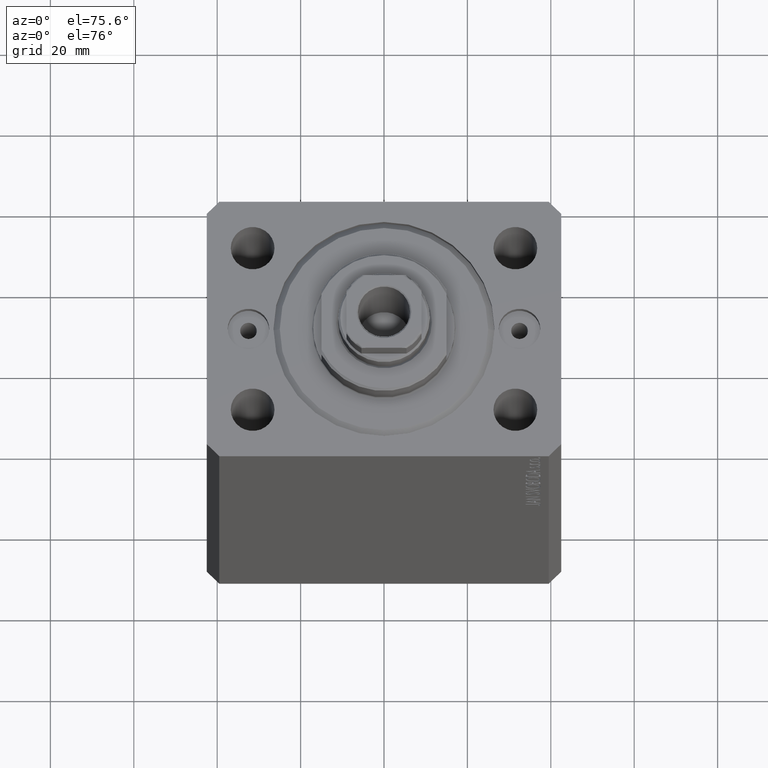
[diagram: clean part render]
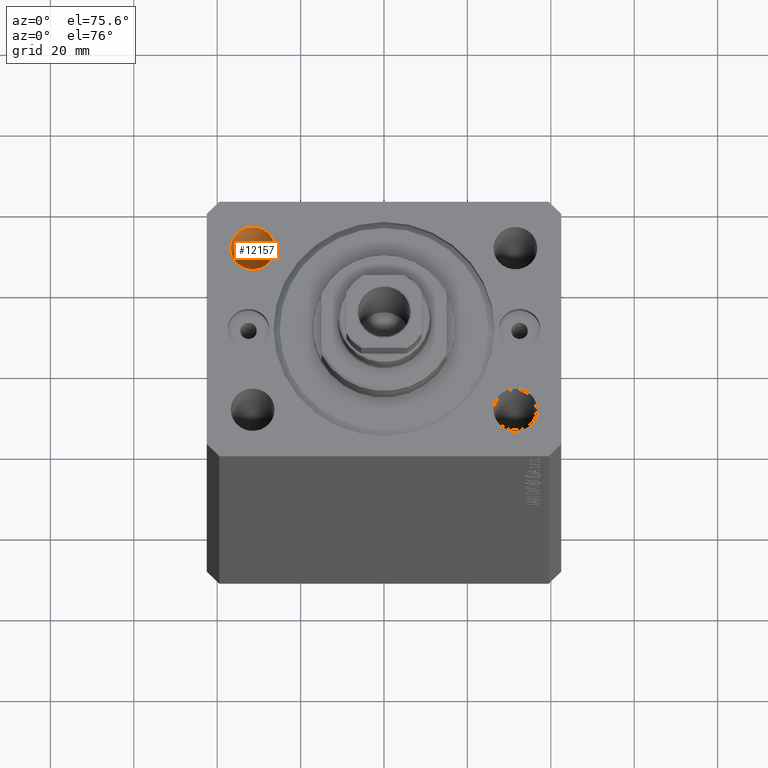
[diagram: same view with one face highlighted and labeled with its STEP entity id]
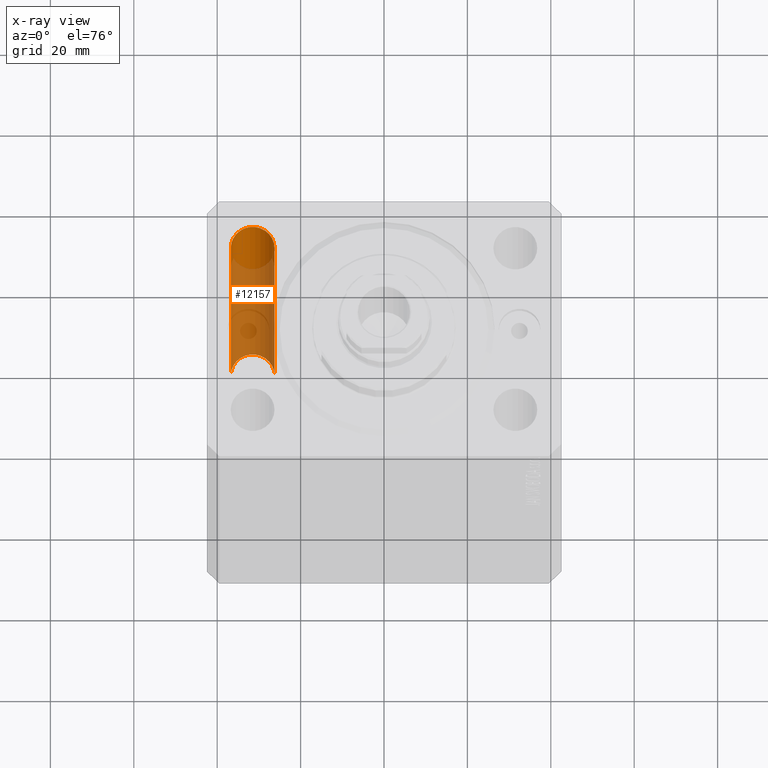
[diagram: x-ray of the same camera — body ghosted, the highlighted face saturated]
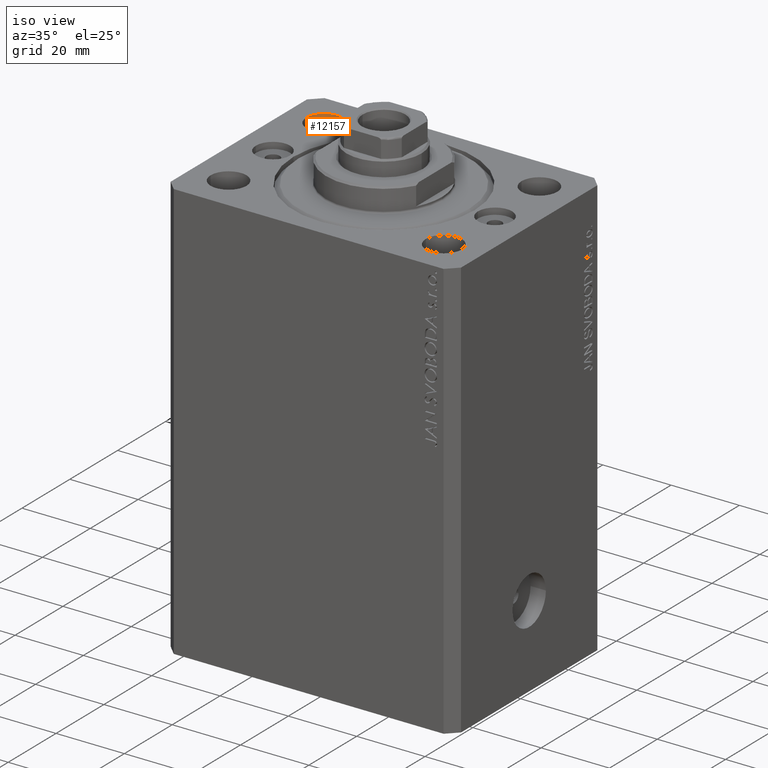
[diagram: same view with one face highlighted and labeled with its STEP entity id]
A machine part, auxiliary view. The second image highlights one B-rep face of the part: STEP entity #12157.
The next image is the same camera in x-ray: the body ghosted, the highlighted face saturated — about 73% of this face is hidden behind the body in this view.
A second angle (iso view) of the same face is appended — the face is thin or edge-on in the first view.
In plain terms, the highlighted cylindrical surface (edge-blend (fillet) strip) has radius 5.25 mm, axis along (0, 0, 1).
Its self-contained STEP definition (entity closure, byte-faithful):
#143 = ORIENTED_EDGE ( 'NONE', *, *, #15711, .T. ) ;
#417 = CARTESIAN_POINT ( 'NONE',  ( -26.25000000000000000, 19.99999999999999645, -137.8492424049174758 ) ) ;
#3297 = VECTOR ( 'NONE', #43456, 1000.000000000000000 ) ;
#4550 = DIRECTION ( 'NONE',  ( 0.000000000000000000, 0.000000000000000000, 1.000000000000000000 ) ) ;
#5204 = DIRECTION ( 'NONE',  ( 1.000000000000000000, 0.000000000000000000, 0.000000000000000000 ) ) ;
#6546 = AXIS2_PLACEMENT_3D ( 'NONE', #42002, #4550, #11295 ) ;
#8463 = EDGE_CURVE ( 'NONE', #22087, #36318, #29321, .T. ) ;
#9796 = AXIS2_PLACEMENT_3D ( 'NONE', #39514, #21600, #5204 ) ;
#10518 = LINE ( 'NONE', #417, #13424 ) ;
#11068 = ORIENTED_EDGE ( 'NONE', *, *, #16195, .T. ) ;
#11295 = DIRECTION ( 'NONE',  ( 1.000000000000000000, 0.000000000000000000, 0.000000000000000000 ) ) ;
#12157 = ADVANCED_FACE ( 'NONE', ( #16390 ), #30052, .F. ) ;
#13207 = VERTEX_POINT ( 'NONE', #25059 ) ;
#13424 = VECTOR ( 'NONE', #14105, 1000.000000000000000 ) ;
#14105 = DIRECTION ( 'NONE',  ( -0.000000000000000000, -0.000000000000000000, 1.000000000000000000 ) ) ;
#15711 = EDGE_CURVE ( 'NONE', #22087, #33948, #36302, .T. ) ;
#15856 = CIRCLE ( 'NONE', #6546, 5.250000000000000888 ) ;
#16195 = EDGE_CURVE ( 'NONE', #33948, #13207, #10518, .T. ) ;
#16390 = FACE_OUTER_BOUND ( 'NONE', #40511, .T. ) ;
#16986 = CARTESIAN_POINT ( 'NONE',  ( -26.25000000000000000, 19.99999999999999645, -123.0000000000000000 ) ) ;
#17111 = CARTESIAN_POINT ( 'NONE',  ( -36.75000000000000000, 19.99999999999999645, 0.000000000000000000 ) ) ;
#17787 = ORIENTED_EDGE ( 'NONE', *, *, #23966, .T. ) ;
#21600 = DIRECTION ( 'NONE',  ( -0.000000000000000000, -0.000000000000000000, -1.000000000000000000 ) ) ;
#22087 = VERTEX_POINT ( 'NONE', #37256 ) ;
#23966 = EDGE_CURVE ( 'NONE', #13207, #36318, #15856, .T. ) ;
#25059 = CARTESIAN_POINT ( 'NONE',  ( -26.25000000000000000, 19.99999999999999645, 0.000000000000000000 ) ) ;
#25295 = ORIENTED_EDGE ( 'NONE', *, *, #8463, .F. ) ;
#25477 = AXIS2_PLACEMENT_3D ( 'NONE', #33642, #40823, #36798 ) ;
#29321 = LINE ( 'NONE', #43012, #3297 ) ;
#30052 = CYLINDRICAL_SURFACE ( 'NONE', #25477, 5.250000000000000888 ) ;
#33642 = CARTESIAN_POINT ( 'NONE',  ( -31.50000000000000000, 19.99999999999999645, -137.8492424049174758 ) ) ;
#33948 = VERTEX_POINT ( 'NONE', #16986 ) ;
#36302 = CIRCLE ( 'NONE', #9796, 5.250000000000000888 ) ;
#36318 = VERTEX_POINT ( 'NONE', #17111 ) ;
#36798 = DIRECTION ( 'NONE',  ( 1.000000000000000000, 0.000000000000000000, 0.000000000000000000 ) ) ;
#37256 = CARTESIAN_POINT ( 'NONE',  ( -36.75000000000000000, 19.99999999999999645, -123.0000000000000000 ) ) ;
#39514 = CARTESIAN_POINT ( 'NONE',  ( -31.50000000000000000, 19.99999999999999645, -123.0000000000000000 ) ) ;
#40511 = EDGE_LOOP ( 'NONE', ( #25295, #143, #11068, #17787 ) ) ;
#40823 = DIRECTION ( 'NONE',  ( -0.000000000000000000, -0.000000000000000000, 1.000000000000000000 ) ) ;
#42002 = CARTESIAN_POINT ( 'NONE',  ( -31.50000000000000000, 19.99999999999999645, 0.000000000000000000 ) ) ;
#43012 = CARTESIAN_POINT ( 'NONE',  ( -36.75000000000000000, 19.99999999999999645, -137.8492424049174758 ) ) ;
#43456 = DIRECTION ( 'NONE',  ( -0.000000000000000000, -0.000000000000000000, 1.000000000000000000 ) ) ;